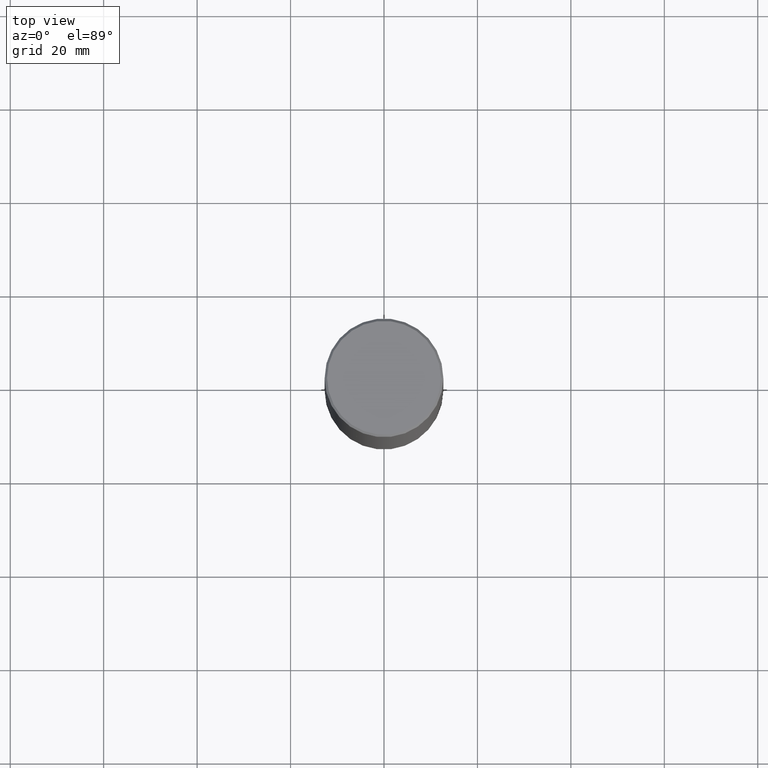
[diagram: clean part render]
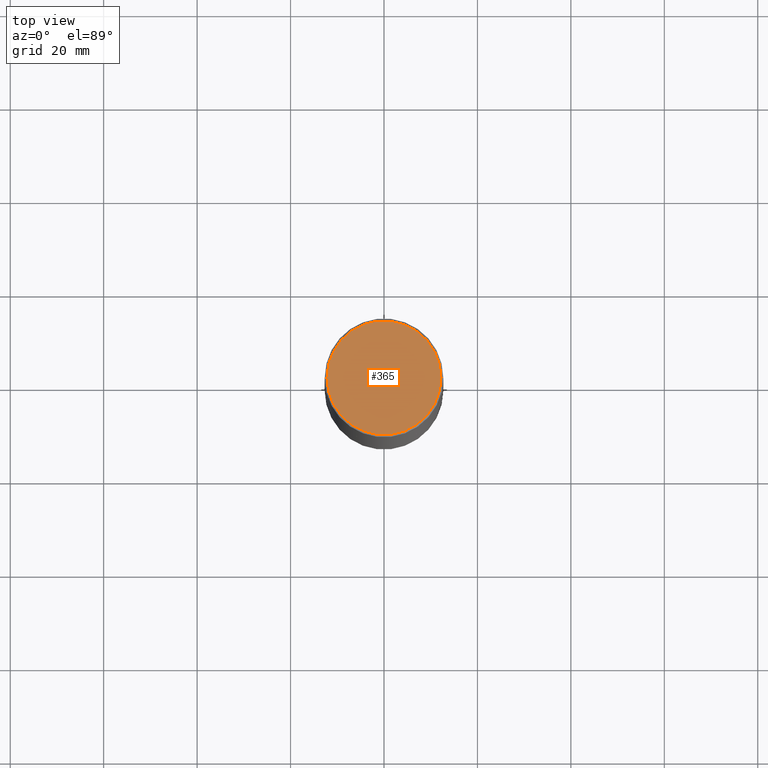
[diagram: same view with one face highlighted and labeled with its STEP entity id]
A machine part, top view. The second image highlights one B-rep face of the part: STEP entity #365.
In plain terms, the highlighted planar face has unit normal (0, -0, -1).
Its self-contained STEP definition (entity closure, byte-faithful):
#31 = VERTEX_POINT ( 'NONE', #259 ) ;
#56 = DIRECTION ( 'NONE',  ( 2.438088387897960049E-29, -3.491481338843145188E-15, -1.000000000000000000 ) ) ;
#78 = CARTESIAN_POINT ( 'NONE',  ( 3.351822085289405970E-15, 0.4799999999999997047, -1.669508273909558261E-15 ) ) ;
#97 = CARTESIAN_POINT ( 'NONE',  ( -3.131554243005659264E-46, 4.471029511141341874E-32, 1.280553747030123384E-17 ) ) ;
#100 = FACE_OUTER_BOUND ( 'NONE', #224, .T. ) ;
#149 = DIRECTION ( 'NONE',  ( 1.000000000000000000, -6.982962677686267499E-15, 4.876036955247132206E-29 ) ) ;
#153 = EDGE_CURVE ( 'NONE', #197, #31, #229, .T. ) ;
#157 = ORIENTED_EDGE ( 'NONE', *, *, #223, .T. ) ;
#178 = DIRECTION ( 'NONE',  ( -2.445468806185136597E-29, 3.491481338843145583E-15, 1.000000000000000000 ) ) ;
#197 = VERTEX_POINT ( 'NONE', #346 ) ;
#198 = AXIS2_PLACEMENT_3D ( 'NONE', #97, #290, #235 ) ;
#204 = CIRCLE ( 'NONE', #198, 0.4799999999999997047 ) ;
#205 = CARTESIAN_POINT ( 'NONE',  ( -3.131554243005659264E-46, 4.471029511141341874E-32, 1.280553747030123384E-17 ) ) ;
#216 = PLANE ( 'NONE',  #349 ) ;
#223 = EDGE_CURVE ( 'NONE', #31, #197, #204, .T. ) ;
#224 = EDGE_LOOP ( 'NONE', ( #298, #157 ) ) ;
#229 = CIRCLE ( 'NONE', #233, 0.4799999999999997047 ) ;
#233 = AXIS2_PLACEMENT_3D ( 'NONE', #205, #178, #149 ) ;
#235 = DIRECTION ( 'NONE',  ( 1.000000000000000000, -6.982962677686267499E-15, 4.876036955247132206E-29 ) ) ;
#259 = CARTESIAN_POINT ( 'NONE',  ( 0.4799999999999997047, -3.396558832296480127E-15, 1.280553747032483033E-17 ) ) ;
#290 = DIRECTION ( 'NONE',  ( -2.445468806185136597E-29, 3.491481338843145583E-15, 1.000000000000000000 ) ) ;
#298 = ORIENTED_EDGE ( 'NONE', *, *, #153, .T. ) ;
#331 = DIRECTION ( 'NONE',  ( -1.000000000000000000, 6.982962677686265922E-15, -4.876176775795935793E-29 ) ) ;
#346 = CARTESIAN_POINT ( 'NONE',  ( -0.4799999999999997047, 3.386736898677837619E-15, 1.280553747027767124E-17 ) ) ;
#349 = AXIS2_PLACEMENT_3D ( 'NONE', #78, #56, #331 ) ;
#365 = ADVANCED_FACE ( 'NONE', ( #100 ), #216, .F. ) ;